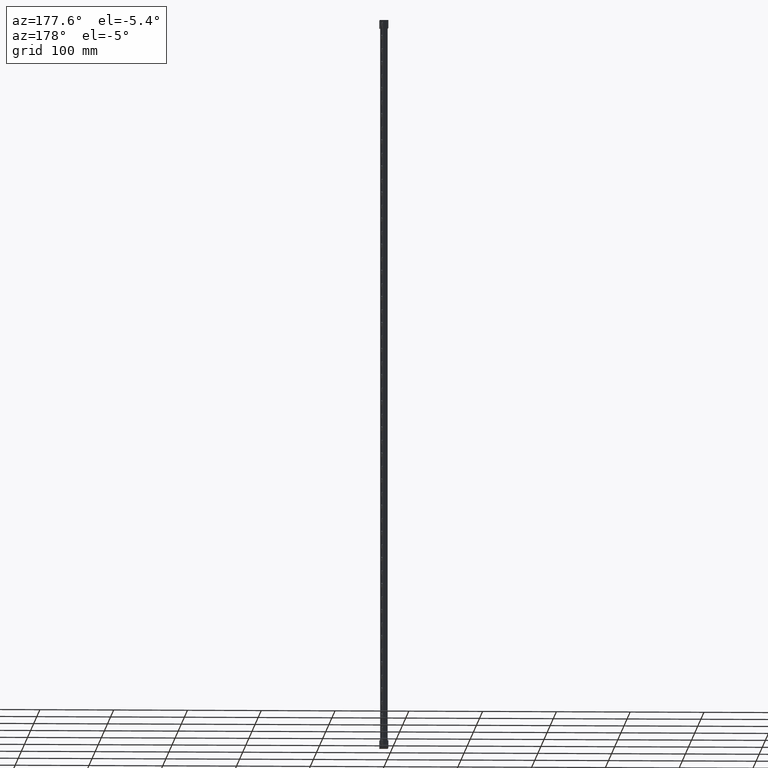
[diagram: clean part render]
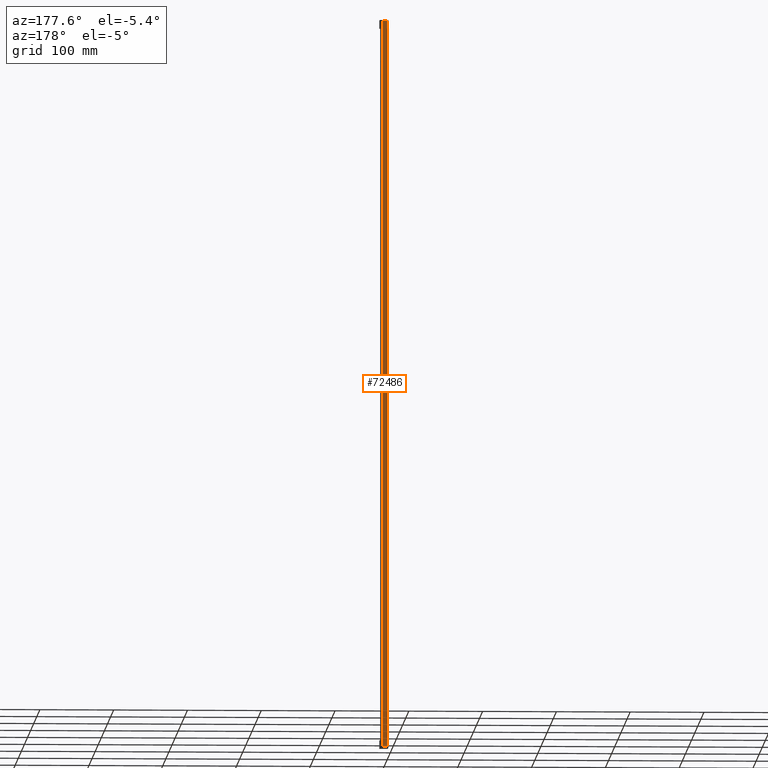
[diagram: same view with one face highlighted and labeled with its STEP entity id]
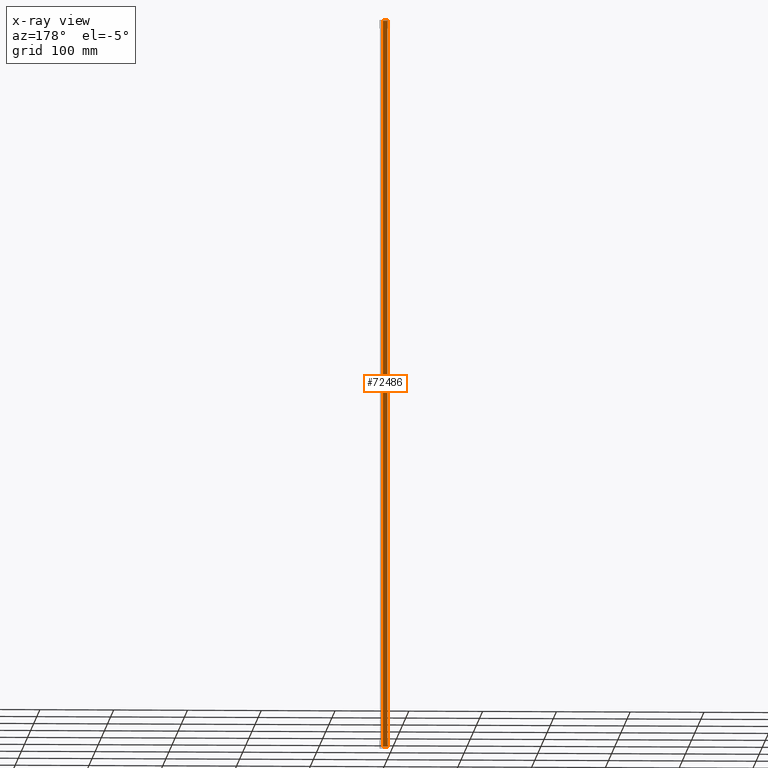
[diagram: x-ray of the same camera — body ghosted, the highlighted face saturated]
A machine part, auxiliary view. The second image highlights one B-rep face of the part: STEP entity #72486.
The next image is the same camera in x-ray: the body ghosted, the highlighted face saturated — about 0% of this face is hidden behind the body in this view.
In plain terms, the highlighted planar face has unit normal (0, -1, 0).
Its self-contained STEP definition (entity closure, byte-faithful):
#16186 = VECTOR ( 'NONE', #64570, 1000.000000000000000 ) ;
#17983 = FACE_OUTER_BOUND ( 'NONE', #87297, .T. ) ;
#18009 = PLANE ( 'NONE',  #36669 ) ;
#18010 = CARTESIAN_POINT ( 'NONE',  ( 6.499999999999950300, 14.99999999999998600, 217.7999999999999800 ) ) ;
#18013 = DIRECTION ( 'NONE',  ( 0.0000000000000000000, -1.000000000000000000, 0.0000000000000000000 ) ) ;
#18014 = DIRECTION ( 'NONE',  ( 0.0000000000000000000, -0.0000000000000000000, -1.000000000000000000 ) ) ;
#27932 = EDGE_CURVE ( 'NONE', #79137, #79112, #44902, .T. ) ;
#34620 = VECTOR ( 'NONE', #44899, 1000.000000000000000 ) ;
#35439 = EDGE_CURVE ( 'NONE', #79137, #79130, #64558, .T. ) ;
#36669 = AXIS2_PLACEMENT_3D ( 'NONE', #18010, #18013, #18014 ) ;
#39381 = ORIENTED_EDGE ( 'NONE', *, *, #85684, .F. ) ;
#39395 = ORIENTED_EDGE ( 'NONE', *, *, #35439, .F. ) ;
#39402 = ORIENTED_EDGE ( 'NONE', *, *, #85640, .F. ) ;
#39421 = ORIENTED_EDGE ( 'NONE', *, *, #27932, .T. ) ;
#44899 = DIRECTION ( 'NONE',  ( -0.0000000000000000000, -0.0000000000000000000, 1.000000000000000000 ) ) ;
#44902 = LINE ( 'NONE', #44909, #34620 ) ;
#44909 = CARTESIAN_POINT ( 'NONE',  ( 0.0000000000000000000, 14.99999999999998600, 217.7999999999999800 ) ) ;
#58182 = CARTESIAN_POINT ( 'NONE',  ( 6.499999999999950300, 14.99999999999998600, -769.8000000000000700 ) ) ;
#58230 = CARTESIAN_POINT ( 'NONE',  ( 0.0000000000000000000, 14.99999999999998600, -769.8000000000000700 ) ) ;
#58284 = CARTESIAN_POINT ( 'NONE',  ( 0.0000000000000000000, 14.99999999999998600, 217.7999999999999800 ) ) ;
#58324 = CARTESIAN_POINT ( 'NONE',  ( 6.499999999999950300, 14.99999999999998600, 217.7999999999999800 ) ) ;
#64555 = CARTESIAN_POINT ( 'NONE',  ( 6.499999999999950300, 14.99999999999998600, -769.8000000000000700 ) ) ;
#64558 = LINE ( 'NONE', #64555, #16186 ) ;
#64570 = DIRECTION ( 'NONE',  ( 1.000000000000000000, 0.0000000000000000000, 0.0000000000000000000 ) ) ;
#72486 = ADVANCED_FACE ( 'NONE', ( #17983 ), #18009, .F. ) ;
#79112 = VERTEX_POINT ( 'NONE', #58284 ) ;
#79130 = VERTEX_POINT ( 'NONE', #58182 ) ;
#79137 = VERTEX_POINT ( 'NONE', #58230 ) ;
#79160 = VERTEX_POINT ( 'NONE', #58324 ) ;
#80276 = VECTOR ( 'NONE', #82124, 1000.000000000000000 ) ;
#80327 = VECTOR ( 'NONE', #82626, 1000.000000000000000 ) ;
#82124 = DIRECTION ( 'NONE',  ( -0.0000000000000000000, 0.0000000000000000000, 1.000000000000000000 ) ) ;
#82151 = LINE ( 'NONE', #82157, #80276 ) ;
#82157 = CARTESIAN_POINT ( 'NONE',  ( 6.499999999999950300, 14.99999999999998600, 217.7999999999999800 ) ) ;
#82626 = DIRECTION ( 'NONE',  ( -1.000000000000000000, -0.0000000000000000000, -0.0000000000000000000 ) ) ;
#82628 = LINE ( 'NONE', #82653, #80327 ) ;
#82653 = CARTESIAN_POINT ( 'NONE',  ( 6.499999999999950300, 14.99999999999998600, 217.7999999999999800 ) ) ;
#85640 = EDGE_CURVE ( 'NONE', #79130, #79160, #82151, .T. ) ;
#85684 = EDGE_CURVE ( 'NONE', #79160, #79112, #82628, .T. ) ;
#87297 = EDGE_LOOP ( 'NONE', ( #39381, #39402, #39395, #39421 ) ) ;